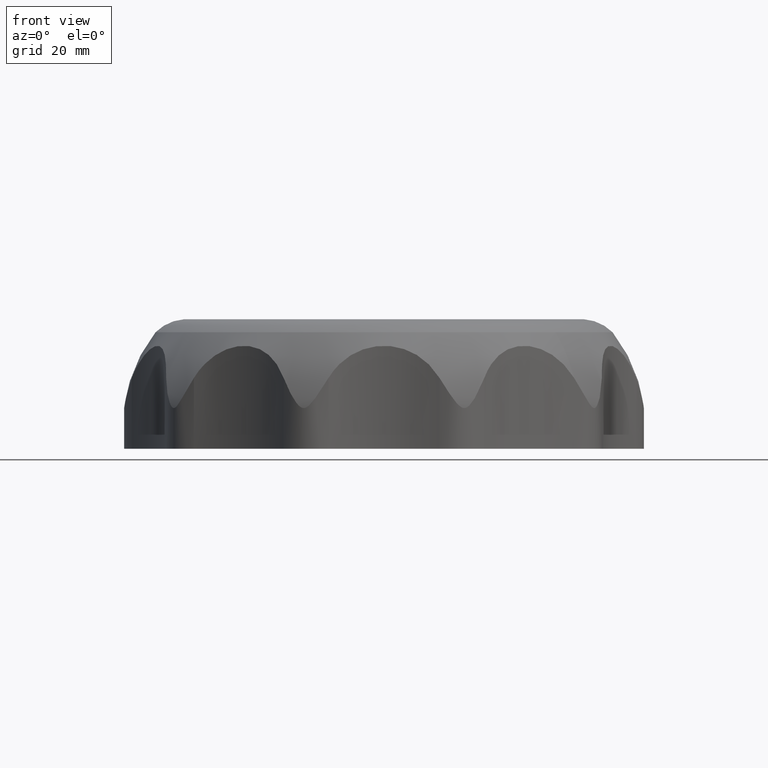
[diagram: clean part render]
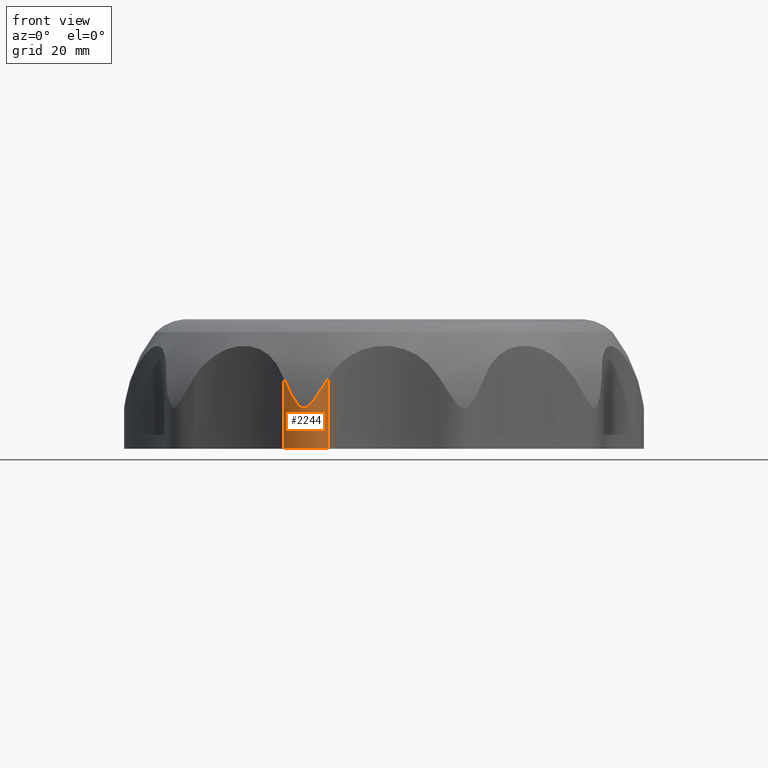
[diagram: same view with one face highlighted and labeled with its STEP entity id]
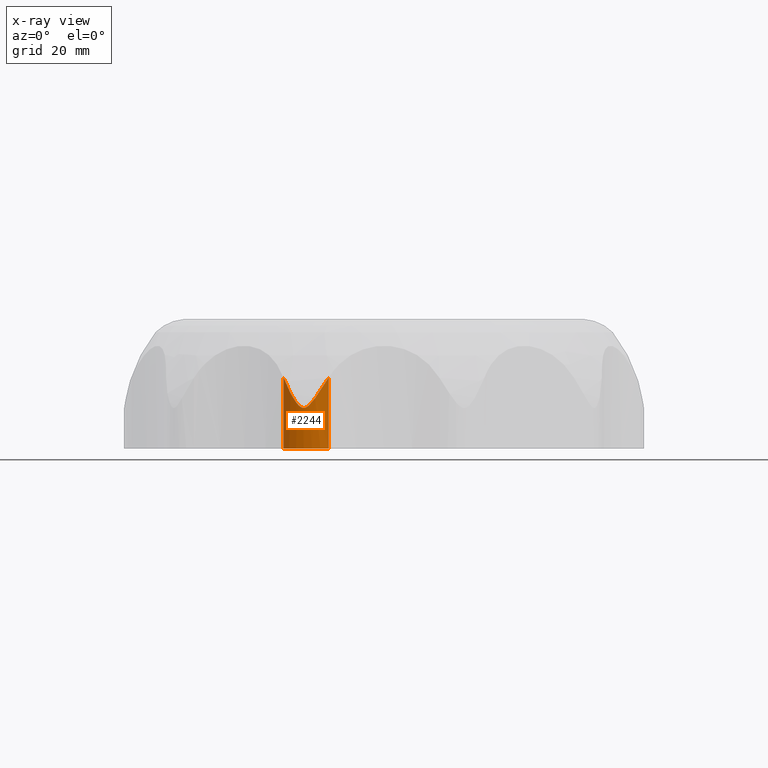
[diagram: x-ray of the same camera — body ghosted, the highlighted face saturated]
A machine part, front view. The second image highlights one B-rep face of the part: STEP entity #2244.
The next image is the same camera in x-ray: the body ghosted, the highlighted face saturated — about 0% of this face is hidden behind the body in this view.
In plain terms, the highlighted cylindrical surface (partial cylindrical patch) has radius 8 mm, axis along (0, 0, -1).
Its self-contained STEP definition (entity closure, byte-faithful):
#2244 = ADVANCED_FACE( '', ( #6630 ), #6631, .T. );
#6630 = FACE_OUTER_BOUND( '', #11061, .T. );
#6631 = CYLINDRICAL_SURFACE( '', #11062, 8.00000000000000 );
#11061 = EDGE_LOOP( '', ( #30425, #30426, #30427, #30428 ) );
#11062 = AXIS2_PLACEMENT_3D( '', #30429, #30430, #30431 );
#30425 = ORIENTED_EDGE( '', *, *, #36940, .F. );
#30426 = ORIENTED_EDGE( '', *, *, #30556, .T. );
#30427 = ORIENTED_EDGE( '', *, *, #36939, .T. );
#30428 = ORIENTED_EDGE( '', *, *, #30524, .T. );
#30429 = CARTESIAN_POINT( '', ( -13.6336020455346, -41.9599110208374, -149.023779459072 ) );
#30430 = DIRECTION( '', ( 0.000000000000000, 0.000000000000000, -1.00000000000000 ) );
#30431 = DIRECTION( '', ( 0.806287425998606, 0.591523952749627, 0.000000000000000 ) );
#30524 = EDGE_CURVE( '', #36982, #36980, #36983, .T. );
#30556 = EDGE_CURVE( '', #37046, #37044, #37047, .T. );
#36939 = EDGE_CURVE( '', #37044, #36982, #47677, .T. );
#36940 = EDGE_CURVE( '', #37046, #36980, #47678, .T. );
#36980 = VERTEX_POINT( '', #48175 );
#36982 = VERTEX_POINT( '', #48210 );
#36983 = B_SPLINE_CURVE_WITH_KNOTS( '', 3, ( #48211, #48212, #48213, #48214, #48215, #48216, #48217, #48218, #48219, #48220, #48221, #48222, #48223, #48224, #48225, #48226, #48227, #48228, #48229, #48230, #48231, #48232, #48233, #48234, #48235, #48236, #48237, #48238, #48239, #48240, #48241, #48242, #48243, #48244, #48245, #48246, #48247, #48248 ), .UNSPECIFIED., .F., .F., ( 4, 2, 2, 2, 2, 2, 2, 2, 2, 2, 2, 2, 2, 2, 2, 2, 2, 2, 4 ), ( 3.68366555814349E-007, 0.00201752034328876, 0.00403467232002170, 0.00504324830838817, 0.00605182429675464, 0.00655611229093788, 0.00706040028512112, 0.00756468827930436, 0.00781683227639598, 0.00806897627348760, 0.00832112027057921, 0.00857326426767082, 0.00907755226185405, 0.00958184025603728, 0.0100861282502205, 0.0110947042385870, 0.0121032802269534, 0.0141204322036863, 0.0161375841804192 ), .UNSPECIFIED. );
#37044 = VERTEX_POINT( '', #48482 );
#37046 = VERTEX_POINT( '', #48484 );
#37047 = CIRCLE( '', #48485, 8.00000000000000 );
#47677 = LINE( '', #75278, #75279 );
#47678 = LINE( '', #75280, #75281 );
#48175 = CARTESIAN_POINT( '', ( -20.1274358767528, -46.6321826495560, 14.2109670542125 ) );
#48210 = CARTESIAN_POINT( '', ( -11.1262723263366, -49.5568378784047, 14.2109675671692 ) );
#48211 = CARTESIAN_POINT( '', ( -11.1262723263368, -49.5568378784048, 14.2109675671694 ) );
#48212 = CARTESIAN_POINT( '', ( -11.4729449335767, -49.6712555300764, 13.6442807890686 ) );
#48213 = CARTESIAN_POINT( '', ( -11.8260001522350, -49.7616638346021, 13.0787553284042 ) );
#48214 = CARTESIAN_POINT( '', ( -12.5481226223707, -49.8944246161143, 11.9521059610801 ) );
#48215 = CARTESIAN_POINT( '', ( -12.9170132856458, -49.9369947646004, 11.3900746032580 ) );
#48216 = CARTESIAN_POINT( '', ( -13.4923353743348, -49.9609662546212, 10.5589681474287 ) );
#48217 = CARTESIAN_POINT( '', ( -13.6875406773385, -49.9622716322746, 10.2844213827009 ) );
#48218 = CARTESIAN_POINT( '', ( -14.0907439502152, -49.9493857226226, 9.74459572638710 ) );
#48219 = CARTESIAN_POINT( '', ( -14.2986245741241, -49.9352864173868, 9.47875362658351 ) );
#48220 = CARTESIAN_POINT( '', ( -14.6281811323328, -49.8986155347967, 9.09913372094225 ) );
#48221 = CARTESIAN_POINT( '', ( -14.7411362725265, -49.8837790173830, 8.97573369694186 ) );
#48222 = CARTESIAN_POINT( '', ( -14.9776103273260, -49.8471131755380, 8.73940503329061 ) );
#48223 = CARTESIAN_POINT( '', ( -15.1018029899111, -49.8251852873402, 8.62564561782940 ) );
#48224 = CARTESIAN_POINT( '', ( -15.3658255323534, -49.7712844655072, 8.42116274127656 ) );
#48225 = CARTESIAN_POINT( '', ( -15.5068524113524, -49.7390529401012, 8.32952700885457 ) );
#48226 = CARTESIAN_POINT( '', ( -15.7322174575045, -49.6801339668353, 8.23088835066825 ) );
#48227 = CARTESIAN_POINT( '', ( -15.8092515163051, -49.6588346007856, 8.20470772202052 ) );
#48228 = CARTESIAN_POINT( '', ( -15.9683562118265, -49.6120870442002, 8.16981690889271 ) );
#48229 = CARTESIAN_POINT( '', ( -16.0497776673553, -49.5867827742329, 8.16160393678005 ) );
#48230 = CARTESIAN_POINT( '', ( -16.2096323647918, -49.5342852638024, 8.16556277352371 ) );
#48231 = CARTESIAN_POINT( '', ( -16.2899836437031, -49.5064566160121, 8.17781657949244 ) );
#48232 = CARTESIAN_POINT( '', ( -16.4439948501064, -49.4504654662139, 8.21962467759207 ) );
#48233 = CARTESIAN_POINT( '', ( -16.5176776104471, -49.4223482480567, 8.24878545695397 ) );
#48234 = CARTESIAN_POINT( '', ( -16.7311086082710, -49.3375053462972, 8.35499083748768 ) );
#48235 = CARTESIAN_POINT( '', ( -16.8614524872363, -49.2810043018751, 8.44958823592354 ) );
#48236 = CARTESIAN_POINT( '', ( -17.1012346217129, -49.1705246993169, 8.65679813237987 ) );
#48237 = CARTESIAN_POINT( '', ( -17.2127444838494, -49.1155993562516, 8.77128218860430 ) );
#48238 = CARTESIAN_POINT( '', ( -17.4238116026198, -49.0060764787804, 9.01020190893789 ) );
#48239 = CARTESIAN_POINT( '', ( -17.5227511394784, -48.9517966875001, 9.13404992160803 ) );
#48240 = CARTESIAN_POINT( '', ( -17.8070925358977, -48.7885097445344, 9.51331334264249 ) );
#48241 = CARTESIAN_POINT( '', ( -17.9802914066242, -48.6789819346113, 9.77624284689837 ) );
#48242 = CARTESIAN_POINT( '', ( -18.3090696544807, -48.4544953019002, 10.3109407273763 ) );
#48243 = CARTESIAN_POINT( '', ( -18.4642558094534, -48.3396366838512, 10.5830014959934 ) );
#48244 = CARTESIAN_POINT( '', ( -18.9104780723111, -47.9847795411247, 11.4070272569892 ) );
#48245 = CARTESIAN_POINT( '', ( -19.1823405945737, -47.7343874642644, 11.9665632747188 ) );
#48246 = CARTESIAN_POINT( '', ( -19.6848498564242, -47.2054307865508, 13.0863211932071 ) );
#48247 = CARTESIAN_POINT( '', ( -19.9156868934586, -46.9264854685506, 13.6481661984124 ) );
#48248 = CARTESIAN_POINT( '', ( -20.1274358767526, -46.6321826495561, 14.2109670542126 ) );
#48482 = CARTESIAN_POINT( '', ( -11.1262723263366, -49.5568378784047, -0.000203932499397846 ) );
#48484 = CARTESIAN_POINT( '', ( -20.1274358767528, -46.6321826495560, -0.000203932499397846 ) );
#48485 = AXIS2_PLACEMENT_3D( '', #75383, #75384, #75385 );
#75278 = CARTESIAN_POINT( '', ( -11.1262723263366, -49.5568378784047, -149.023779459072 ) );
#75279 = VECTOR( '', #77728, 1000.00000000000 );
#75280 = CARTESIAN_POINT( '', ( -20.1274358767528, -46.6321826495560, -149.023779459072 ) );
#75281 = VECTOR( '', #77729, 1000.00000000000 );
#75383 = CARTESIAN_POINT( '', ( -13.6336020455346, -41.9599110208374, -0.000203932499397846 ) );
#75384 = DIRECTION( '', ( -3.93122838974283E-017, -7.71547013724938E-017, 1.00000000000000 ) );
#75385 = DIRECTION( '', ( 0.951056516295154, 0.309016994374947, 6.12303176911189E-017 ) );
#77728 = DIRECTION( '', ( 0.000000000000000, 0.000000000000000, 1.00000000000000 ) );
#77729 = DIRECTION( '', ( 0.000000000000000, 0.000000000000000, 1.00000000000000 ) );